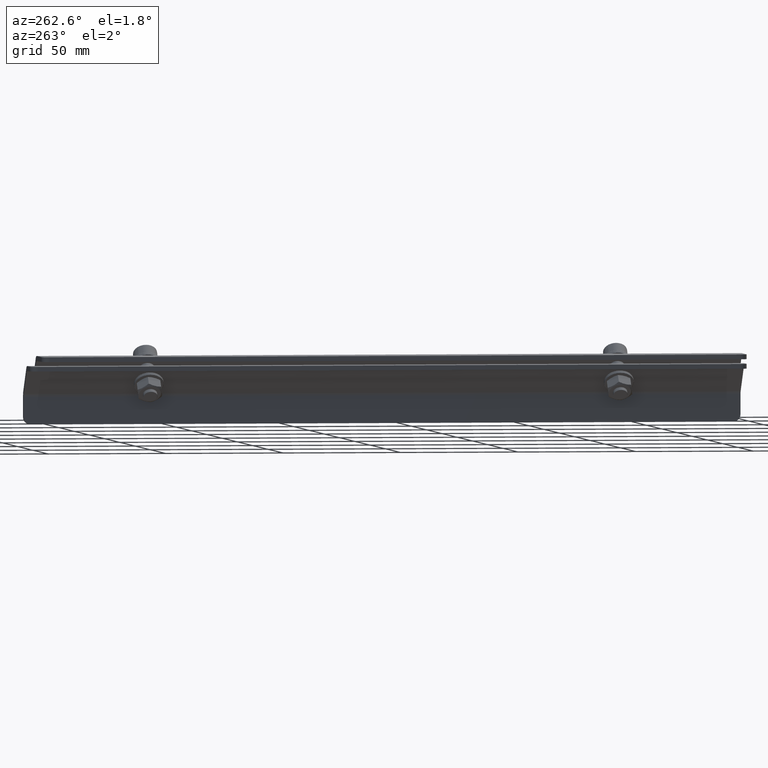
[diagram: clean part render]
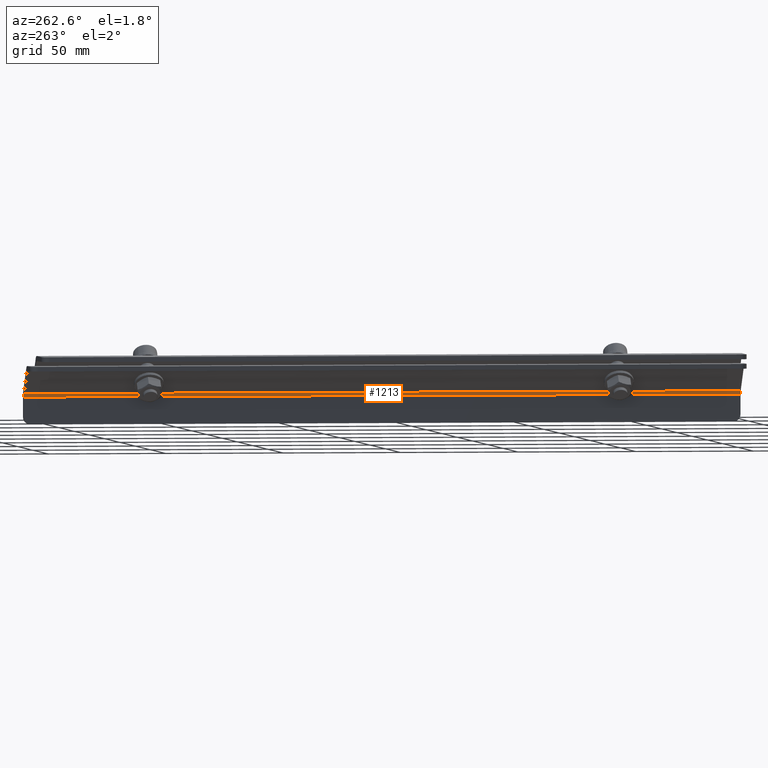
[diagram: same view with one face highlighted and labeled with its STEP entity id]
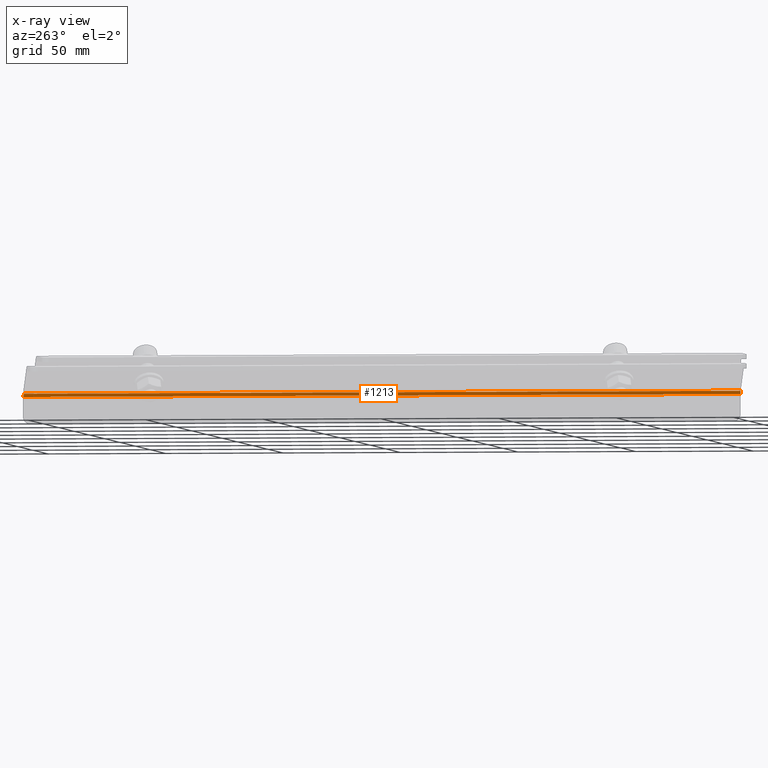
[diagram: x-ray of the same camera — body ghosted, the highlighted face saturated]
A machine part, auxiliary view. The second image highlights one B-rep face of the part: STEP entity #1213.
The next image is the same camera in x-ray: the body ghosted, the highlighted face saturated — about 0% of this face is hidden behind the body in this view.
In plain terms, the highlighted cylindrical surface (edge-blend (fillet) strip) has radius 2 mm, axis along (-0, -1, -0).
Its self-contained STEP definition (entity closure, byte-faithful):
#68 = DIRECTION ( 'NONE',  ( -0.000000000000000000, -1.000000000000000000, -0.000000000000000000 ) ) ;
#81 = ORIENTED_EDGE ( 'NONE', *, *, #86, .F. ) ;
#84 = CARTESIAN_POINT ( 'NONE',  ( -2.452425157086234098, 228.3044532268044691, 156.9208841990130168 ) ) ;
#86 = EDGE_CURVE ( 'NONE', #3262, #1457, #3201, .T. ) ;
#169 = AXIS2_PLACEMENT_3D ( 'NONE', #1590, #2651, #2912 ) ;
#192 = EDGE_LOOP ( 'NONE', ( #2156, #81, #4115, #556 ) ) ;
#412 = VERTEX_POINT ( 'NONE', #1250 ) ;
#556 = ORIENTED_EDGE ( 'NONE', *, *, #2636, .F. ) ;
#562 = DIRECTION ( 'NONE',  ( 0.000000000000000000, 0.000000000000000000, -1.000000000000000000 ) ) ;
#644 = CARTESIAN_POINT ( 'NONE',  ( -2.452425157086234098, 228.2044532268045032, 156.9208841990130168 ) ) ;
#1049 = CARTESIAN_POINT ( 'NONE',  ( -4.452425157086235430, -76.69554677319553093, 156.9208841990130168 ) ) ;
#1213 = ADVANCED_FACE ( 'NONE', ( #1904 ), #1970, .F. ) ;
#1250 = CARTESIAN_POINT ( 'NONE',  ( -2.452425157086234098, -76.69554677319553093, 156.9208841990130168 ) ) ;
#1300 = CARTESIAN_POINT ( 'NONE',  ( -4.452425157086235430, 228.3044532268044691, 156.9208841990130168 ) ) ;
#1373 = VECTOR ( 'NONE', #3691, 1000.000000000000000 ) ;
#1440 = LINE ( 'NONE', #3080, #3885 ) ;
#1457 = VERTEX_POINT ( 'NONE', #2378 ) ;
#1511 = EDGE_CURVE ( 'NONE', #1457, #3214, #1440, .T. ) ;
#1590 = CARTESIAN_POINT ( 'NONE',  ( -4.452425157086235430, 228.2044532268045032, 156.9208841990130168 ) ) ;
#1741 = AXIS2_PLACEMENT_3D ( 'NONE', #1300, #3234, #562 ) ;
#1904 = FACE_OUTER_BOUND ( 'NONE', #192, .T. ) ;
#1970 = CYLINDRICAL_SURFACE ( 'NONE', #169, 2.000000000000001776 ) ;
#2025 = DIRECTION ( 'NONE',  ( 5.204170427930416550E-15, 0.000000000000000000, -1.000000000000000000 ) ) ;
#2156 = ORIENTED_EDGE ( 'NONE', *, *, #1511, .F. ) ;
#2297 = LINE ( 'NONE', #644, #1373 ) ;
#2378 = CARTESIAN_POINT ( 'NONE',  ( -3.038211594713138730, 228.3044532268044691, 158.3350977613860948 ) ) ;
#2612 = AXIS2_PLACEMENT_3D ( 'NONE', #1049, #3756, #2025 ) ;
#2634 = CARTESIAN_POINT ( 'NONE',  ( -3.038211594713138730, -76.69554677319553093, 158.3350977613860948 ) ) ;
#2636 = EDGE_CURVE ( 'NONE', #3214, #412, #3952, .T. ) ;
#2651 = DIRECTION ( 'NONE',  ( -0.000000000000000000, -1.000000000000000000, -0.000000000000000000 ) ) ;
#2912 = DIRECTION ( 'NONE',  ( 0.000000000000000000, 0.000000000000000000, -1.000000000000000000 ) ) ;
#3080 = CARTESIAN_POINT ( 'NONE',  ( -3.038211594713138730, 228.2044532268045032, 158.3350977613860948 ) ) ;
#3183 = EDGE_CURVE ( 'NONE', #412, #3262, #2297, .T. ) ;
#3201 = CIRCLE ( 'NONE', #1741, 2.000000000000001776 ) ;
#3214 = VERTEX_POINT ( 'NONE', #2634 ) ;
#3234 = DIRECTION ( 'NONE',  ( -0.000000000000000000, -1.000000000000000000, -0.000000000000000000 ) ) ;
#3262 = VERTEX_POINT ( 'NONE', #84 ) ;
#3691 = DIRECTION ( 'NONE',  ( 0.000000000000000000, 1.000000000000000000, 0.000000000000000000 ) ) ;
#3756 = DIRECTION ( 'NONE',  ( 0.000000000000000000, 1.000000000000000000, 0.000000000000000000 ) ) ;
#3885 = VECTOR ( 'NONE', #68, 1000.000000000000000 ) ;
#3952 = CIRCLE ( 'NONE', #2612, 2.000000000000001776 ) ;
#4115 = ORIENTED_EDGE ( 'NONE', *, *, #3183, .F. ) ;